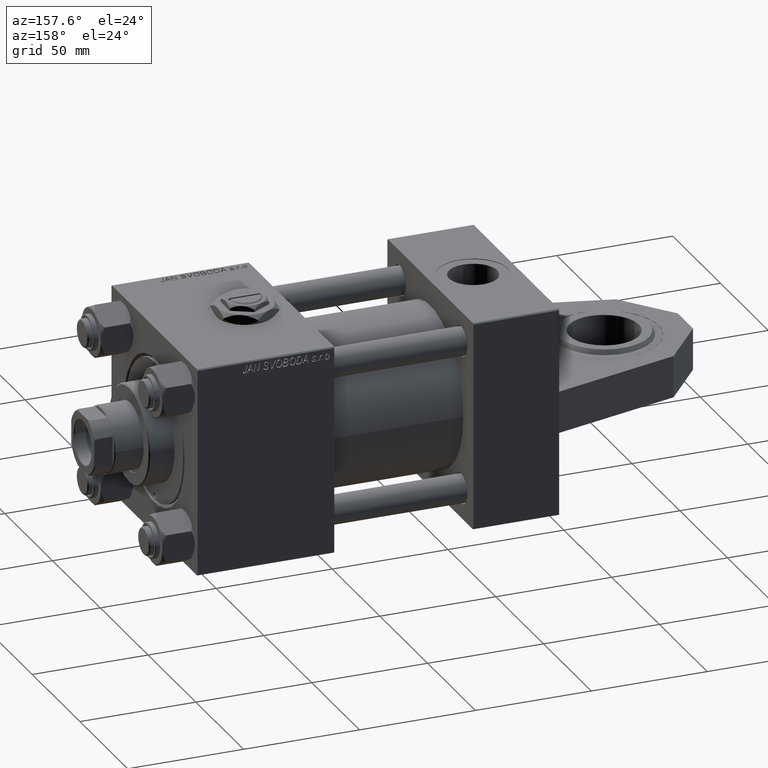
[diagram: clean part render]
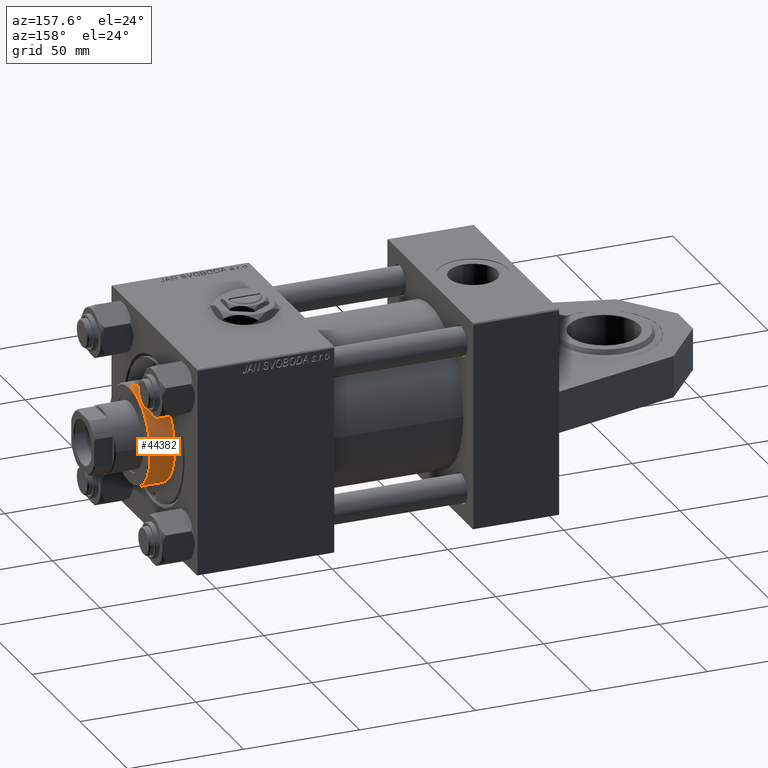
[diagram: same view with one face highlighted and labeled with its STEP entity id]
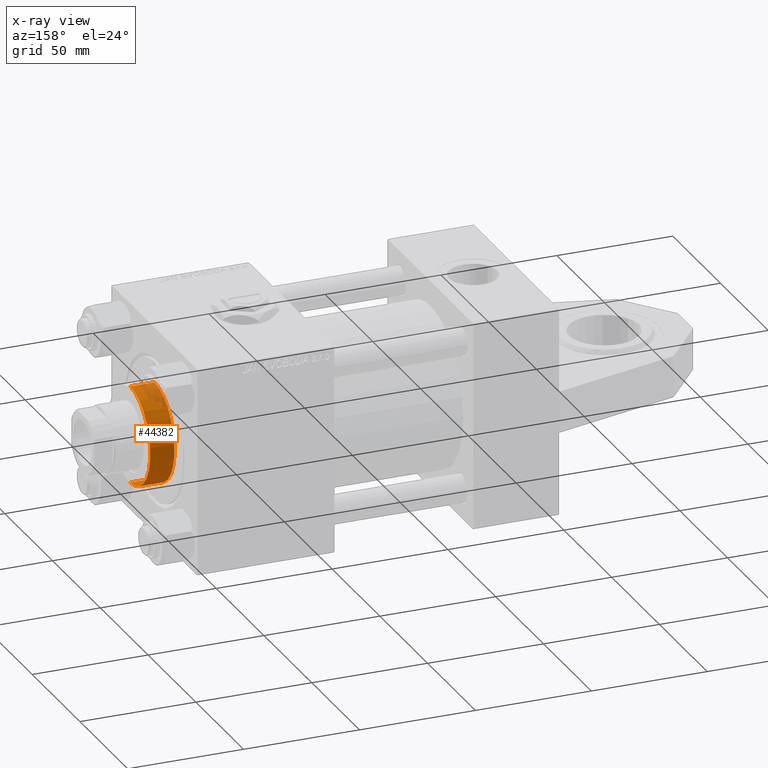
[diagram: x-ray of the same camera — body ghosted, the highlighted face saturated]
A machine part, auxiliary view. The second image highlights one B-rep face of the part: STEP entity #44382.
The next image is the same camera in x-ray: the body ghosted, the highlighted face saturated — about 12% of this face is hidden behind the body in this view.
In plain terms, the highlighted cylindrical surface (partial cylindrical patch) has radius 21 mm, axis along (-1, -0, 0).
Its self-contained STEP definition (entity closure, byte-faithful):
#270 = LINE ( 'NONE', #4218, #450 ) ;
#298 = ORIENTED_EDGE ( 'NONE', *, *, #20574, .T. ) ;
#450 = VECTOR ( 'NONE', #16029, 1000.000000000000000 ) ;
#1495 = DIRECTION ( 'NONE',  ( -1.000000000000000000, 0.000000000000000000, 0.000000000000000000 ) ) ;
#2704 = AXIS2_PLACEMENT_3D ( 'NONE', #12985, #12733, #44994 ) ;
#4218 = CARTESIAN_POINT ( 'NONE',  ( -21.00000000000000000, 0.000000000000000000, 37.69999999999999574 ) ) ;
#8020 = EDGE_CURVE ( 'NONE', #31959, #11103, #10900, .T. ) ;
#9090 = VERTEX_POINT ( 'NONE', #40243 ) ;
#9615 = AXIS2_PLACEMENT_3D ( 'NONE', #41140, #21424, #1495 ) ;
#9669 = LINE ( 'NONE', #17274, #17355 ) ;
#10628 = CARTESIAN_POINT ( 'NONE',  ( -21.00000000000000000, 0.000000000000000000, 37.19999999999999574 ) ) ;
#10900 = CIRCLE ( 'NONE', #35208, 21.00000000000000000 ) ;
#11102 = ORIENTED_EDGE ( 'NONE', *, *, #27442, .F. ) ;
#11103 = VERTEX_POINT ( 'NONE', #51931 ) ;
#11879 = ORIENTED_EDGE ( 'NONE', *, *, #32470, .T. ) ;
#12721 = EDGE_LOOP ( 'NONE', ( #298, #11879, #50591, #11102 ) ) ;
#12733 = DIRECTION ( 'NONE',  ( 0.000000000000000000, 0.000000000000000000, -1.000000000000000000 ) ) ;
#12985 = CARTESIAN_POINT ( 'NONE',  ( 0.000000000000000000, 0.000000000000000000, 37.19999999999999574 ) ) ;
#15631 = DIRECTION ( 'NONE',  ( 1.000000000000000000, 0.000000000000000000, 0.000000000000000000 ) ) ;
#15740 = VERTEX_POINT ( 'NONE', #10628 ) ;
#15894 = DIRECTION ( 'NONE',  ( 0.000000000000000000, 0.000000000000000000, 1.000000000000000000 ) ) ;
#16029 = DIRECTION ( 'NONE',  ( -0.000000000000000000, -0.000000000000000000, -1.000000000000000000 ) ) ;
#17274 = CARTESIAN_POINT ( 'NONE',  ( 21.00000000000000000, 2.571758278209441661E-15, 37.69999999999999574 ) ) ;
#17355 = VECTOR ( 'NONE', #31412, 1000.000000000000000 ) ;
#20392 = FACE_OUTER_BOUND ( 'NONE', #12721, .T. ) ;
#20574 = EDGE_CURVE ( 'NONE', #15740, #9090, #31168, .T. ) ;
#21424 = DIRECTION ( 'NONE',  ( -0.000000000000000000, -0.000000000000000000, -1.000000000000000000 ) ) ;
#22954 = CARTESIAN_POINT ( 'NONE',  ( 21.00000000000000000, 2.571758278209441661E-15, 26.69999999999999929 ) ) ;
#27442 = EDGE_CURVE ( 'NONE', #15740, #11103, #270, .T. ) ;
#31168 = CIRCLE ( 'NONE', #2704, 21.00000000000000000 ) ;
#31412 = DIRECTION ( 'NONE',  ( -0.000000000000000000, -0.000000000000000000, -1.000000000000000000 ) ) ;
#31959 = VERTEX_POINT ( 'NONE', #22954 ) ;
#32470 = EDGE_CURVE ( 'NONE', #9090, #31959, #9669, .T. ) ;
#35208 = AXIS2_PLACEMENT_3D ( 'NONE', #35843, #15894, #15631 ) ;
#35843 = CARTESIAN_POINT ( 'NONE',  ( 0.000000000000000000, 0.000000000000000000, 26.69999999999999929 ) ) ;
#40243 = CARTESIAN_POINT ( 'NONE',  ( 21.00000000000000000, 2.571758278209441661E-15, 37.19999999999999574 ) ) ;
#41140 = CARTESIAN_POINT ( 'NONE',  ( 0.000000000000000000, 0.000000000000000000, 37.69999999999999574 ) ) ;
#44382 = ADVANCED_FACE ( 'NONE', ( #20392 ), #48487, .T. ) ;
#44994 = DIRECTION ( 'NONE',  ( 1.000000000000000000, 0.000000000000000000, 0.000000000000000000 ) ) ;
#48487 = CYLINDRICAL_SURFACE ( 'NONE', #9615, 21.00000000000000000 ) ;
#50591 = ORIENTED_EDGE ( 'NONE', *, *, #8020, .T. ) ;
#51931 = CARTESIAN_POINT ( 'NONE',  ( -21.00000000000000000, 0.000000000000000000, 26.69999999999999929 ) ) ;